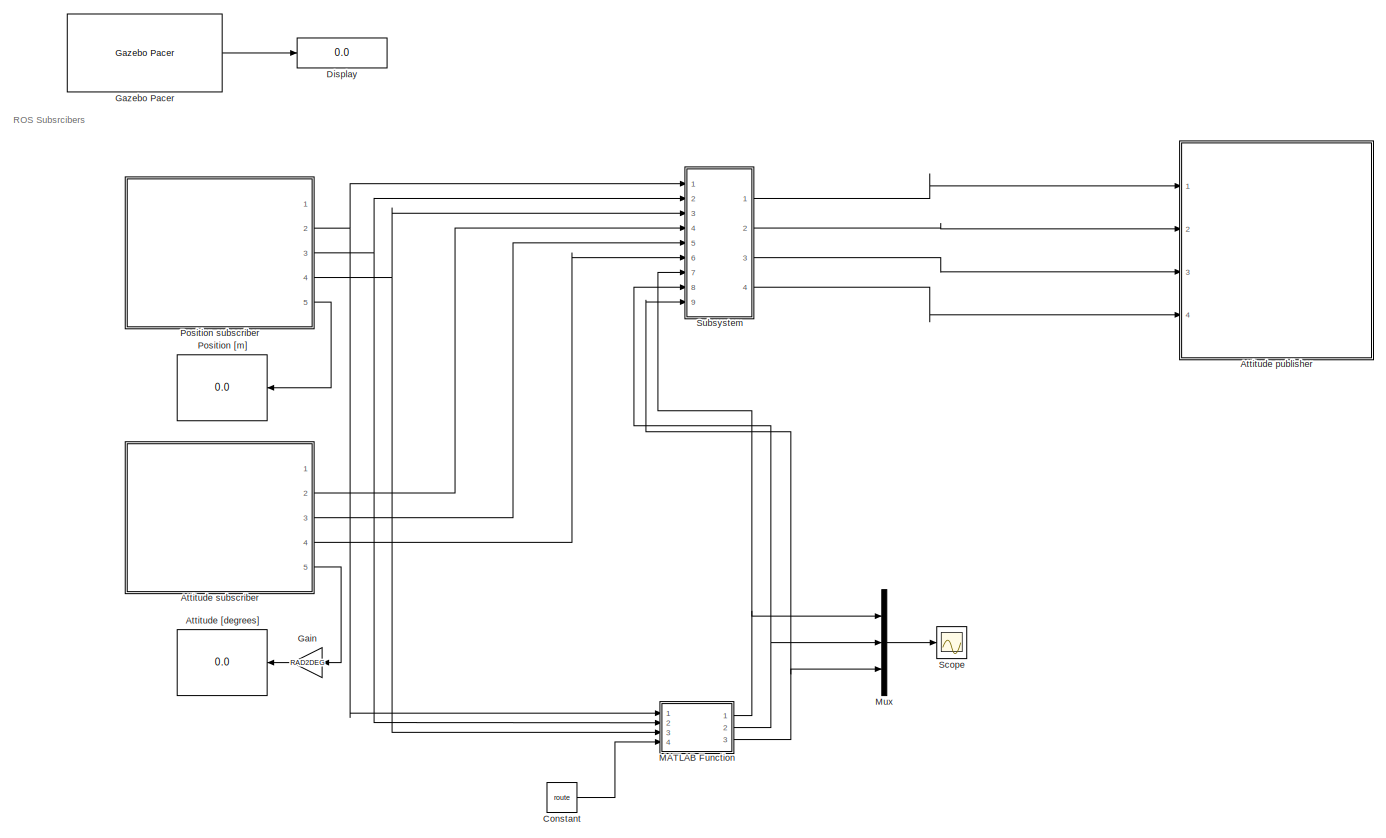
[diagram: root canvas - part 1/1, most of the canvas]
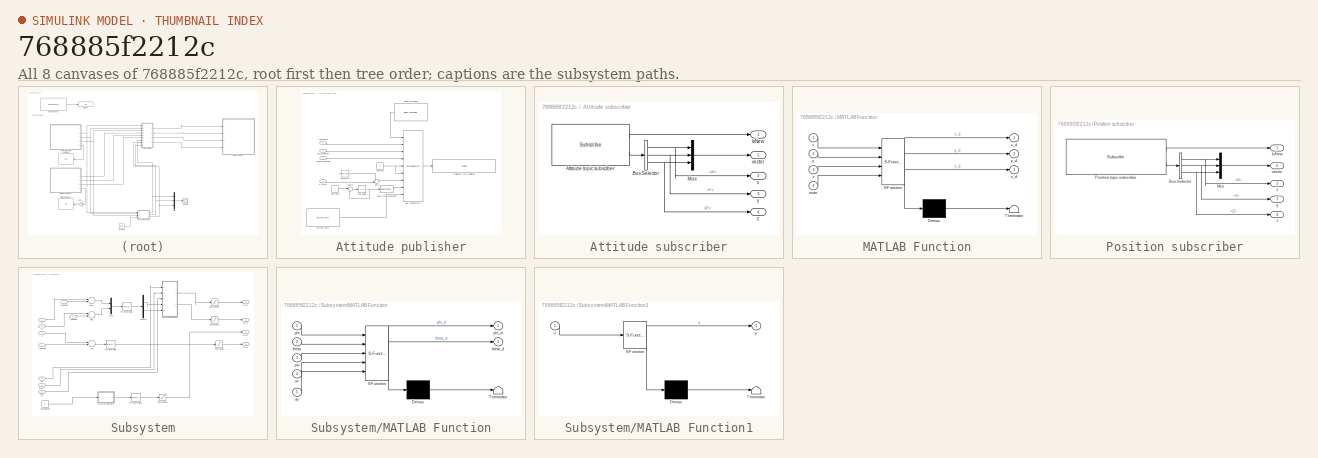
[diagram: thumbnail index - all 8 canvases of the model, root first then tree order]
MODEL slx_768885f2212c
KIND model
CONFIG AbsTol = auto
CONFIG EnableMultiTasking = off
CONFIG FixedStep = FIXED_STEP_SIZE
CONFIG MaxStep = auto
CONFIG MinStep = auto
CONFIG RelTol = 1e-3
CONFIG SampleTimeConstraint = Unconstrained
CONFIG Solver = FixedStepAuto
CONFIG SolverName = FixedStepAuto
CONFIG StartTime = 0.0
CONFIG StopTime = Inf
BLOCK [Display] Attitude [degrees]
  Decimation = 1
  Ports = [1]
BLOCK [SubSystem] Attitude publisher
  Ports = [4]
  RequestExecContextInheritance = off
BLOCK [Reference] Attitude publisher/Blank Message1  REF=robotlib/Blank Message
  Ports = [0, 1]
  SourceBlock = robotlib/Blank Message
  SourceProductBaseCode = RR
  SourceProductName = ROS Toolbox
  SourceType = ROS Blank Message
BLOCK [BusAssignment] Attitude publisher/Bus Assignment1
  AssignedSignals = Roll,Pitch,YawRate,Thrust.X,Thrust.Y,Thrust.Z,Header.Seq,Header.Stamp
  Ports = [9, 1]
BLOCK [Constant] Attitude publisher/Constant
  Value = 0
BLOCK [Constant] Attitude publisher/Constant1
  Value = THRUST_OFFSET
BLOCK [Constant] Attitude publisher/Constant2
BLOCK [Reference] Attitude publisher/Current Time  REF=robotlib/Current Time
  Ports = [0, 1]
  SourceBlock = robotlib/Current Time
  SourceProductBaseCode = RR
  SourceProductName = ROS Toolbox
  SourceType = ros.slros.internal.block.CurrentTime
BLOCK [DataTypeConversion] Attitude publisher/Data Type Conversion
  OutDataTypeStr = uint32
  RndMeth = Floor
  SaturateOnIntegerOverflow = off
BLOCK [Sum] Attitude publisher/Sum
  IconShape = round
  InputSameDT = off
  Inputs = ++|
  OutDataTypeStr = Inherit: Inherit via internal rule
  Ports = [2, 1]
  SaturateOnIntegerOverflow = off
BLOCK [Sum] Attitude publisher/Sum1
  IconShape = round
  InputSameDT = off
  Inputs = |++
  OutDataTypeStr = Inherit: Inherit via internal rule
  Ports = [2, 1]
  SaturateOnIntegerOverflow = off
BLOCK [Reference] Attitude publisher/Trajectory cmd publisher  REF=robotlib/Publish
  Ports = [1]
  SourceBlock = robotlib/Publish
  SourceProductBaseCode = RR
  SourceProductName = ROS Toolbox
  SourceType = ROS Publish
BLOCK [UnitDelay] Attitude publisher/Unit Delay
  HasFrameUpgradeWarning = on
  SampleTime = FIXED_STEP_SIZE
BLOCK [Inport] Attitude publisher/pitch_desired
  IconDisplay = Port number
  Port = 2
BLOCK [Inport] Attitude publisher/roll_desired
  IconDisplay = Port number
BLOCK [Inport] Attitude publisher/yawrate_desired
  IconDisplay = Port number
  Port = 3
BLOCK [Inport] Attitude publisher/z_thrust
  IconDisplay = Port number
  Port = 4
BLOCK [SubSystem] Attitude subscriber
  Ports = [0, 5]
  RequestExecContextInheritance = off
BLOCK [Reference] Attitude subscriber/Attitude topic subsciber  REF=robotlib/Subscribe
  Ports = [0, 2]
  SourceBlock = robotlib/Subscribe
  SourceProductBaseCode = RR
  SourceProductName = ROS Toolbox
  SourceType = ROS Subscribe
BLOCK [BusSelector] Attitude subscriber/Bus Selector
  OutputAsBus = off
  OutputSignals = X,Y,Z
  Ports = [1, 3]
BLOCK [Outport] Attitude subscriber/IsNew
  IconDisplay = Port number
BLOCK [Mux] Attitude subscriber/Mux
  DisplayOption = bar
  Inputs = 3
  Ports = [3, 1]
BLOCK [Outport] Attitude subscriber/vector
  IconDisplay = Port number
  Port = 5
BLOCK [Outport] Attitude subscriber/x
  IconDisplay = Port number
  Port = 2
BLOCK [Outport] Attitude subscriber/y
  IconDisplay = Port number
  Port = 3
BLOCK [Outport] Attitude subscriber/z
  IconDisplay = Port number
  Port = 4
BLOCK [Constant] Constant
  Value = route
BLOCK [Display] Display
  Decimation = 1
  Ports = [1]
BLOCK [Gain] Gain
  Gain = RAD2DEG
  OutDataTypeStr = Inherit: Inherit via internal rule
  ParamDataTypeStr = Inherit: Inherit via internal rule
  SaturateOnIntegerOverflow = off
BLOCK [Reference] Gazebo Pacer  REF=robotgazebolib/Gazebo Pacer
  Ports = [0, 1]
  SourceBlock = robotgazebolib/Gazebo Pacer
  SourceProductBaseCode = RO
  SourceProductName = Robotics System Toolbox
  SourceType = Gazebo Pacer
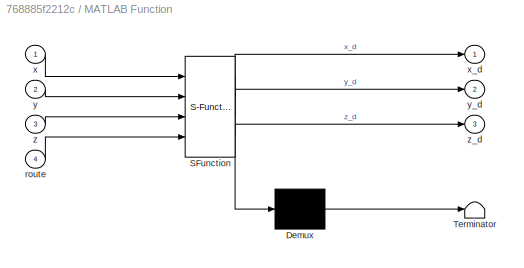
BLOCK [SubSystem] MATLAB Function
  ErrorFcn = Stateflow.Translate.translate
  PermitHierarchicalResolution = ExplicitOnly
  Ports = [4, 3]
  RequestExecContextInheritance = off
  SFBlockType = MATLAB Function
  TreatAsAtomicUnit = on
BLOCK [Demux] MATLAB Function/ Demux 
  Outputs = 1
  Ports = [1, 1]
BLOCK [S-Function] MATLAB Function/ SFunction 
  EnableBusSupport = on
  FunctionName = sf_sfun
  PortCounts = [4 4]
  Ports = [4, 4]
  SFcnIsStateOwnerBlock = off
  SFunctionDeploymentMode = off
  Tag = Stateflow S-Function 1
BLOCK [Terminator] MATLAB Function/ Terminator 
BLOCK [Inport] MATLAB Function/route
  IconDisplay = Port number
  Port = 4
BLOCK [Inport] MATLAB Function/x
  IconDisplay = Port number
BLOCK [Outport] MATLAB Function/x_d
  IconDisplay = Port number
BLOCK [Inport] MATLAB Function/y
  IconDisplay = Port number
  Port = 2
BLOCK [Outport] MATLAB Function/y_d
  IconDisplay = Port number
  Port = 2
BLOCK [Inport] MATLAB Function/z
  IconDisplay = Port number
  Port = 3
BLOCK [Outport] MATLAB Function/z_d
  IconDisplay = Port number
  Port = 3
BLOCK [Mux] Mux
  DisplayOption = bar
  Inputs = 3
  Ports = [3, 1]
BLOCK [Display] Position [m]
  Decimation = 1
  Ports = [1]
BLOCK [SubSystem] Position subscriber
  Ports = [0, 5]
  RequestExecContextInheritance = off
BLOCK [BusSelector] Position subscriber/Bus Selector
  OutputAsBus = off
  OutputSignals = Point.X,Point.Y,Point.Z
  Ports = [1, 3]
BLOCK [Outport] Position subscriber/IsNew
  IconDisplay = Port number
BLOCK [Mux] Position subscriber/Mux
  DisplayOption = bar
  Inputs = 3
  Ports = [3, 1]
BLOCK [Reference] Position subscriber/Position topic subscriber  REF=robotlib/Subscribe
  Ports = [0, 2]
  SourceBlock = robotlib/Subscribe
  SourceProductBaseCode = RR
  SourceProductName = ROS Toolbox
  SourceType = ROS Subscribe
BLOCK [Outport] Position subscriber/vector
  IconDisplay = Port number
  Port = 5
BLOCK [Outport] Position subscriber/x
  IconDisplay = Port number
  Port = 2
BLOCK [Outport] Position subscriber/y
  IconDisplay = Port number
  Port = 3
BLOCK [Outport] Position subscriber/z
  IconDisplay = Port number
  Port = 4
BLOCK [Scope] Scope
  Floating = off
  NumInputPorts = 1
  Ports = [1]
  ScopeSpecificationString = Simulink.scopes.TimeScopeBlockCfg('CurrentConfiguration', extmgr.ConfigurationSet(extmgr.Configuration('Core','General UI',true),extmgr.Configuration('Core','Source UI',true),extmgr.Configuration('Sources','WiredSimulink',true),extmgr.Configuration('Visuals','Time Domain',true,'SerializedDisplays',{struct('MinYLimReal','2.25','MaxYLimReal','9.75','YLabelReal','','MinYLimMag','2.25','MaxYLimMag','9...<+1386ch>
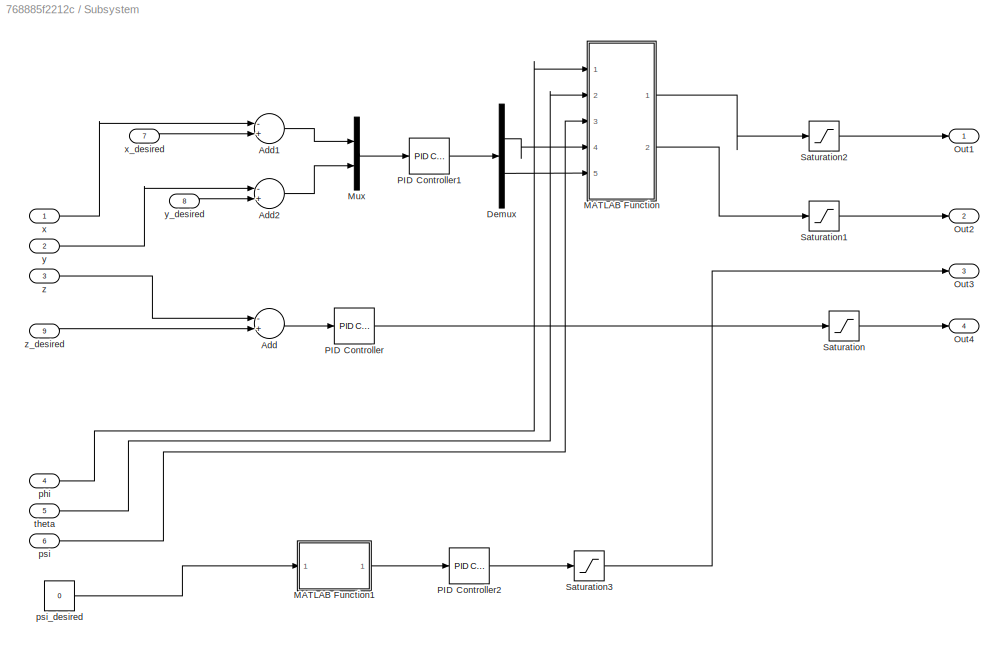
BLOCK [SubSystem] Subsystem
  Ports = [9, 4]
  RequestExecContextInheritance = off
BLOCK [Sum] Subsystem/Add
  InputSameDT = off
  Inputs = -+
  OutDataTypeStr = Inherit: Inherit via internal rule
  Ports = [2, 1]
  SaturateOnIntegerOverflow = off
BLOCK [Sum] Subsystem/Add1
  InputSameDT = off
  Inputs = -+
  OutDataTypeStr = Inherit: Inherit via internal rule
  Ports = [2, 1]
  SaturateOnIntegerOverflow = off
BLOCK [Sum] Subsystem/Add2
  InputSameDT = off
  Inputs = -+
  OutDataTypeStr = Inherit: Inherit via internal rule
  Ports = [2, 1]
  SaturateOnIntegerOverflow = off
BLOCK [Demux] Subsystem/Demux
  DisplayOption = bar
  Outputs = 2
  Ports = [1, 2]
BLOCK [SubSystem] Subsystem/MATLAB Function
  ErrorFcn = Stateflow.Translate.translate
  PermitHierarchicalResolution = ExplicitOnly
  Ports = [5, 2]
  RequestExecContextInheritance = off
  SFBlockType = MATLAB Function
  TreatAsAtomicUnit = on
BLOCK [Demux] Subsystem/MATLAB Function/ Demux 
  Outputs = 1
  Ports = [1, 1]
BLOCK [S-Function] Subsystem/MATLAB Function/ SFunction 
  EnableBusSupport = on
  FunctionName = sf_sfun
  PortCounts = [5 3]
  Ports = [5, 3]
  SFcnIsStateOwnerBlock = off
  SFunctionDeploymentMode = off
  Tag = Stateflow S-Function 2
BLOCK [Terminator] Subsystem/MATLAB Function/ Terminator 
BLOCK [Inport] Subsystem/MATLAB Function/phi
  IconDisplay = Port number
BLOCK [Outport] Subsystem/MATLAB Function/phi_d
  IconDisplay = Port number
BLOCK [Inport] Subsystem/MATLAB Function/psi
  IconDisplay = Port number
  Port = 3
BLOCK [Inport] Subsystem/MATLAB Function/theta
  IconDisplay = Port number
  Port = 2
BLOCK [Outport] Subsystem/MATLAB Function/theta_d
  IconDisplay = Port number
  Port = 2
BLOCK [Inport] Subsystem/MATLAB Function/ux
  IconDisplay = Port number
  Port = 4
BLOCK [Inport] Subsystem/MATLAB Function/uy
  IconDisplay = Port number
  Port = 5
BLOCK [SubSystem] Subsystem/MATLAB Function1
  ErrorFcn = Stateflow.Translate.translate
  PermitHierarchicalResolution = ExplicitOnly
  Ports = [1, 1]
  RequestExecContextInheritance = off
  SFBlockType = MATLAB Function
  TreatAsAtomicUnit = on
BLOCK [Demux] Subsystem/MATLAB Function1/ Demux 
  Outputs = 1
  Ports = [1, 1]
BLOCK [S-Function] Subsystem/MATLAB Function1/ SFunction 
  EnableBusSupport = on
  FunctionName = sf_sfun
  PortCounts = [1 2]
  Ports = [1, 2]
  SFcnIsStateOwnerBlock = off
  SFunctionDeploymentMode = off
  Tag = Stateflow S-Function 3
BLOCK [Terminator] Subsystem/MATLAB Function1/ Terminator 
BLOCK [Inport] Subsystem/MATLAB Function1/u
  IconDisplay = Port number
BLOCK [Outport] Subsystem/MATLAB Function1/y
  IconDisplay = Port number
BLOCK [Mux] Subsystem/Mux
  DisplayOption = bar
  Inputs = 2
  Ports = [2, 1]
BLOCK [Outport] Subsystem/Out1
  IconDisplay = Port number
BLOCK [Outport] Subsystem/Out2
  IconDisplay = Port number
  Port = 2
BLOCK [Outport] Subsystem/Out3
  IconDisplay = Port number
  Port = 3
BLOCK [Outport] Subsystem/Out4
  IconDisplay = Port number
  Port = 4
BLOCK [Reference] Subsystem/PID Controller  REF=simulink/Continuous/PID Controller
  Ports = [1, 1]
  SourceBlock = simulink/Continuous/PID Controller
  SourceProductBaseCode = SL
  SourceProductName = Simulink
  SourceType = PID 1dof
BLOCK [Reference] Subsystem/PID Controller1  REF=simulink/Continuous/PID Controller
  Ports = [1, 1]
  SourceBlock = simulink/Continuous/PID Controller
  SourceProductBaseCode = SL
  SourceProductName = Simulink
  SourceType = PID 1dof
BLOCK [Reference] Subsystem/PID Controller2  REF=simulink/Continuous/PID Controller
  Ports = [1, 1]
  SourceBlock = simulink/Continuous/PID Controller
  SourceProductBaseCode = SL
  SourceProductName = Simulink
  SourceType = PID 1dof
BLOCK [Saturate] Subsystem/Saturation
  InputPortMap = u0
  LowerLimit = 2-THRUST_OFFSET
  Ports = [1, 1]
  UpperLimit = 30-THRUST_OFFSET
BLOCK [Saturate] Subsystem/Saturation1
  InputPortMap = u0
  LowerLimit = -pi/6
  Ports = [1, 1]
  UpperLimit = pi/6
BLOCK [Saturate] Subsystem/Saturation2
  InputPortMap = u0
  LowerLimit = -pi/6
  Ports = [1, 1]
  UpperLimit = pi/6
BLOCK [Saturate] Subsystem/Saturation3
  InputPortMap = u0
  LowerLimit = -3
  Ports = [1, 1]
  UpperLimit = 3
BLOCK [Inport] Subsystem/phi
  IconDisplay = Port number
  Port = 4
BLOCK [Inport] Subsystem/psi
  IconDisplay = Port number
  Port = 6
BLOCK [Constant] Subsystem/psi_desired
  Value = 0
BLOCK [Inport] Subsystem/theta
  IconDisplay = Port number
  Port = 5
BLOCK [Inport] Subsystem/x
  IconDisplay = Port number
BLOCK [Inport] Subsystem/x_desired
  IconDisplay = Port number
  Port = 7
BLOCK [Inport] Subsystem/y
  IconDisplay = Port number
  Port = 2
BLOCK [Inport] Subsystem/y_desired
  IconDisplay = Port number
  Port = 8
BLOCK [Inport] Subsystem/z
  IconDisplay = Port number
  Port = 3
BLOCK [Inport] Subsystem/z_desired
  IconDisplay = Port number
  Port = 9
ANNOTATION (root): ROS Subsrcibers
LINE Attitude publisher/Blank Message1:1 -> Attitude publisher/Bus Assignment1:1
LINE Attitude publisher/Bus Assignment1:1 -> Attitude publisher/Trajectory cmd publisher:1
LINE Attitude publisher/Constant1:1 -> Attitude publisher/Sum:1
LINE Attitude publisher/Constant2:1 -> Attitude publisher/Sum1:1
NET Attitude publisher/Constant:1 -> Attitude publisher/Bus Assignment1:5, Attitude publisher/Bus Assignment1:6
LINE Attitude publisher/Current Time:1 -> Attitude publisher/Bus Assignment1:9
LINE Attitude publisher/Data Type Conversion:1 -> Attitude publisher/Bus Assignment1:8
LINE Attitude publisher/Sum1:1 -> Attitude publisher/Unit Delay:1
LINE Attitude publisher/Sum:1 -> Attitude publisher/Bus Assignment1:7
NET Attitude publisher/Unit Delay:1 -> Attitude publisher/Data Type Conversion:1, Attitude publisher/Sum1:2
LINE Attitude publisher/pitch_desired:1 -> Attitude publisher/Bus Assignment1:3
LINE Attitude publisher/roll_desired:1 -> Attitude publisher/Bus Assignment1:2
LINE Attitude publisher/yawrate_desired:1 -> Attitude publisher/Bus Assignment1:4
LINE Attitude publisher/z_thrust:1 -> Attitude publisher/Sum:2
LINE Attitude subscriber/Attitude topic subsciber:1 -> Attitude subscriber/IsNew:1
LINE Attitude subscriber/Attitude topic subsciber:2 -> Attitude subscriber/Bus Selector:1
NET Attitude subscriber/Bus Selector:1 -> Attitude subscriber/Mux:1, Attitude subscriber/x:1
NET Attitude subscriber/Bus Selector:2 -> Attitude subscriber/Mux:2, Attitude subscriber/y:1
NET Attitude subscriber/Bus Selector:3 -> Attitude subscriber/Mux:3, Attitude subscriber/z:1
LINE Attitude subscriber/Mux:1 -> Attitude subscriber/vector:1
LINE Attitude subscriber:2 -> Subsystem:4
LINE Attitude subscriber:3 -> Subsystem:5
LINE Attitude subscriber:4 -> Subsystem:6
LINE Attitude subscriber:5 -> Gain:1
LINE Constant:1 -> MATLAB Function:4
LINE Gain:1 -> Attitude [degrees]:1
LINE Gazebo Pacer:1 -> Display:1
NET MATLAB Function:1 -> Mux:1, Subsystem:7
NET MATLAB Function:2 -> Mux:2, Subsystem:8
NET MATLAB Function:3 -> Mux:3, Subsystem:9
LINE Mux:1 -> Scope:1
NET Position subscriber/Bus Selector:1 -> Position subscriber/Mux:1, Position subscriber/x:1
NET Position subscriber/Bus Selector:2 -> Position subscriber/Mux:2, Position subscriber/y:1
NET Position subscriber/Bus Selector:3 -> Position subscriber/Mux:3, Position subscriber/z:1
LINE Position subscriber/Mux:1 -> Position subscriber/vector:1
LINE Position subscriber/Position topic subscriber:1 -> Position subscriber/IsNew:1
LINE Position subscriber/Position topic subscriber:2 -> Position subscriber/Bus Selector:1
NET Position subscriber:2 -> MATLAB Function:1, Subsystem:1
NET Position subscriber:3 -> MATLAB Function:2, Subsystem:2
NET Position subscriber:4 -> MATLAB Function:3, Subsystem:3
LINE Position subscriber:5 -> Position [m]:1
LINE Subsystem/Add1:1 -> Subsystem/Mux:1
LINE Subsystem/Add2:1 -> Subsystem/Mux:2
LINE Subsystem/Add:1 -> Subsystem/PID Controller:1
LINE Subsystem/Demux:1 -> Subsystem/MATLAB Function:4
LINE Subsystem/Demux:2 -> Subsystem/MATLAB Function:5
LINE Subsystem/MATLAB Function1:1 -> Subsystem/PID Controller2:1
LINE Subsystem/MATLAB Function:1 -> Subsystem/Saturation2:1
LINE Subsystem/MATLAB Function:2 -> Subsystem/Saturation1:1
LINE Subsystem/Mux:1 -> Subsystem/PID Controller1:1
LINE Subsystem/PID Controller1:1 -> Subsystem/Demux:1
LINE Subsystem/PID Controller2:1 -> Subsystem/Saturation3:1
LINE Subsystem/PID Controller:1 -> Subsystem/Saturation:1
LINE Subsystem/Saturation1:1 -> Subsystem/Out2:1
LINE Subsystem/Saturation2:1 -> Subsystem/Out1:1
LINE Subsystem/Saturation3:1 -> Subsystem/Out3:1
LINE Subsystem/Saturation:1 -> Subsystem/Out4:1
LINE Subsystem/phi:1 -> Subsystem/MATLAB Function:1
LINE Subsystem/psi:1 -> Subsystem/MATLAB Function:3
LINE Subsystem/psi_desired:1 -> Subsystem/MATLAB Function1:1
LINE Subsystem/theta:1 -> Subsystem/MATLAB Function:2
LINE Subsystem/x:1 -> Subsystem/Add1:1
LINE Subsystem/x_desired:1 -> Subsystem/Add1:2
LINE Subsystem/y:1 -> Subsystem/Add2:1
LINE Subsystem/y_desired:1 -> Subsystem/Add2:2
LINE Subsystem/z:1 -> Subsystem/Add:1
LINE Subsystem/z_desired:1 -> Subsystem/Add:2
LINE Subsystem:1 -> Attitude publisher:1
LINE Subsystem:2 -> Attitude publisher:2
LINE Subsystem:3 -> Attitude publisher:3
LINE Subsystem:4 -> Attitude publisher:4
note: NET lines group one-source signal fan-out (src -> all destinations, sorted); 1:1 wires keep LINE
CHART MATLAB Function states=1 transitions=1
  STATE_LABEL 'eML_blk_kernel()'
  STATE_LABEL 'SCRIPT:\nfunction [x_d, y_d, z_d] = fcn(x,y,z,route)\npersistent COUNTER;\nif isempty(COUNTER)\n    % initilization\n    COUNTER = 1;\nend\npose = route(COUNTER, :);\nx_d = pose(1);\ny_d = pose(2);\nz_d = pose(3);\npose_C = [x,y,z];\nif norm(pose_C-pose)<=0.1\n   COUNTER = COUNTER+1; \nend\nif COUNTER>size(route, 1)\n    % stay in the same position\n    COUNTER = size(route, 1);\nend\nend'
CHART Subsystem/MATLAB Function states=1 transitions=1
  STATE_LABEL 'eML_blk_kernel()'
  STATE_LABEL 'SCRIPT:\nfunction [phi_d, theta_d] = fcn(phi, theta, psi, ux, uy)\nR = [cos(psi)*cos(theta), cos(theta)*sin(psi), -sin(theta);\n    cos(psi)*sin(phi)*sin(theta)-cos(phi)*sin(psi), cos(phi)*cos(psi)+sin(phi)*sin(psi)*sin(theta), cos(theta)*sin(phi);\n    sin(phi)*sin(psi)+cos(phi)*cos(psi)*sin(theta), cos(phi)*sin(psi)*sin(theta)-cos(psi)*sin(phi), cos(phi)*cos(theta)];\na = [0,-1,0;1,0,0]*R*[ux; uy; 0]...<+36ch>'
CHART Subsystem/MATLAB Function1 states=1 transitions=1
  STATE_LABEL 'eML_blk_kernel()'
  STATE_LABEL 'SCRIPT:\nfunction y = fcn(u)\nif abs(u)>pi\n    y = u - 2*pi;\nelse\n    y = u;\nend\nend'
